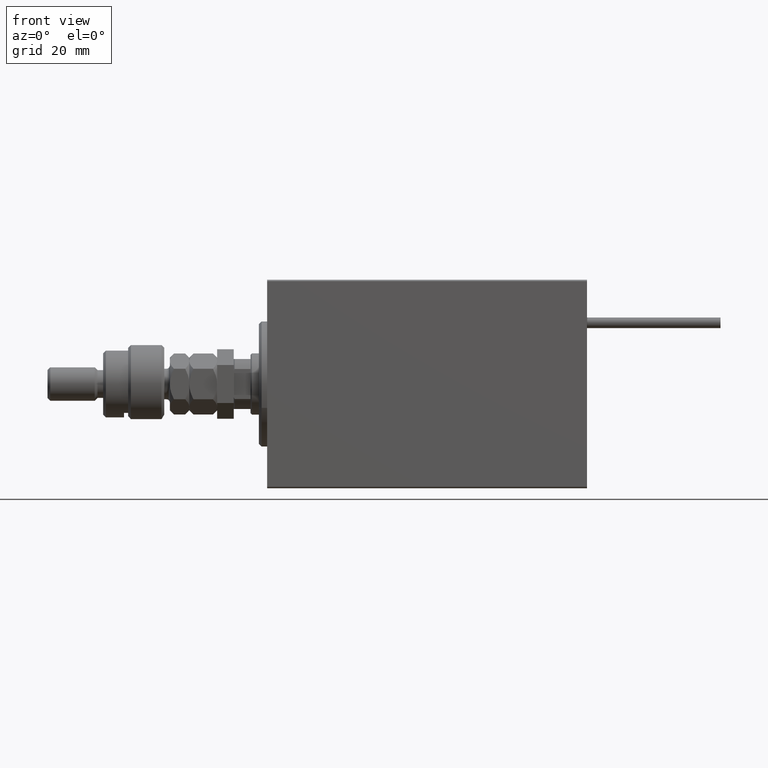
[diagram: clean part render]
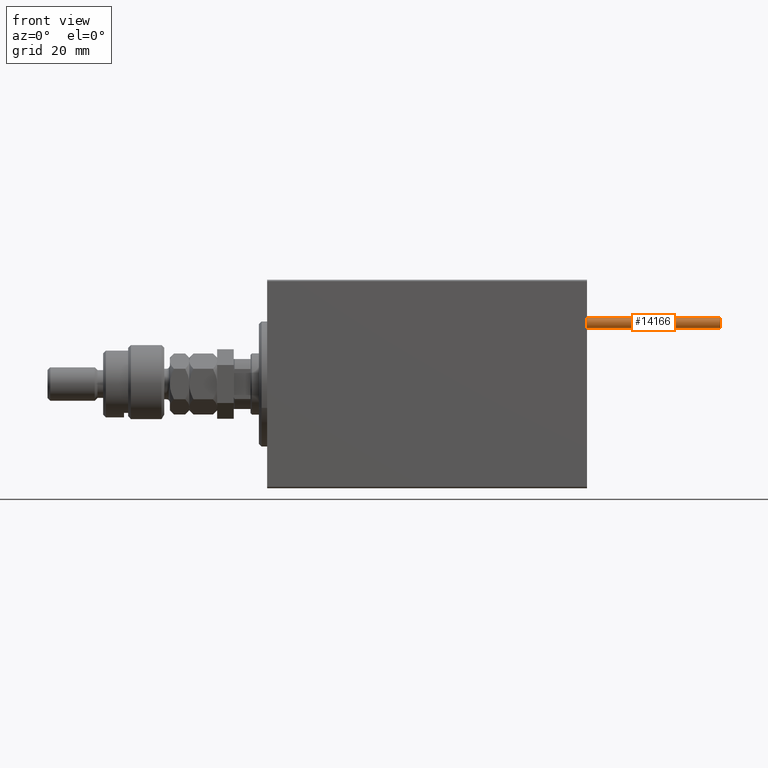
[diagram: same view with one face highlighted and labeled with its STEP entity id]
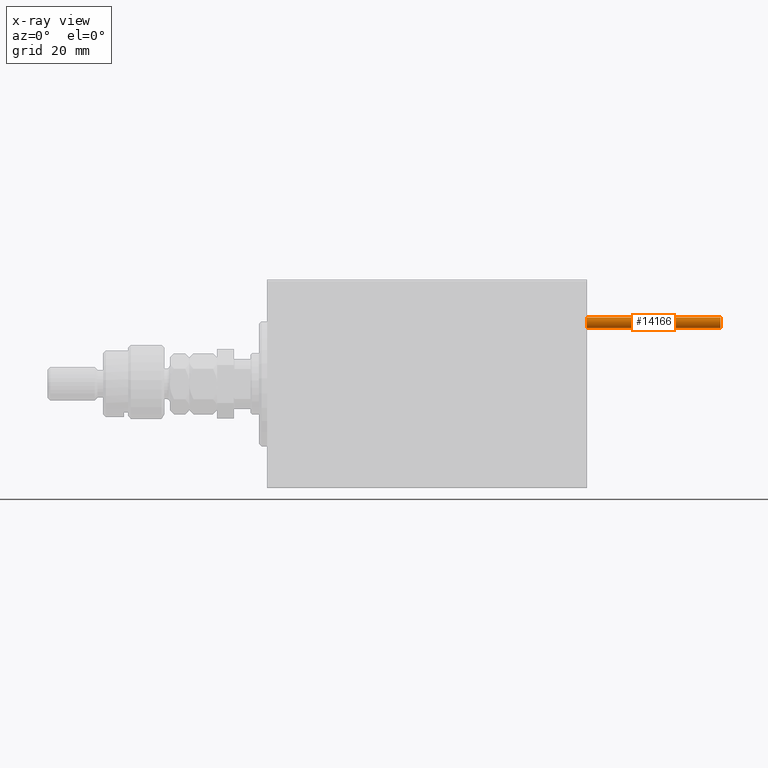
[diagram: x-ray of the same camera — body ghosted, the highlighted face saturated]
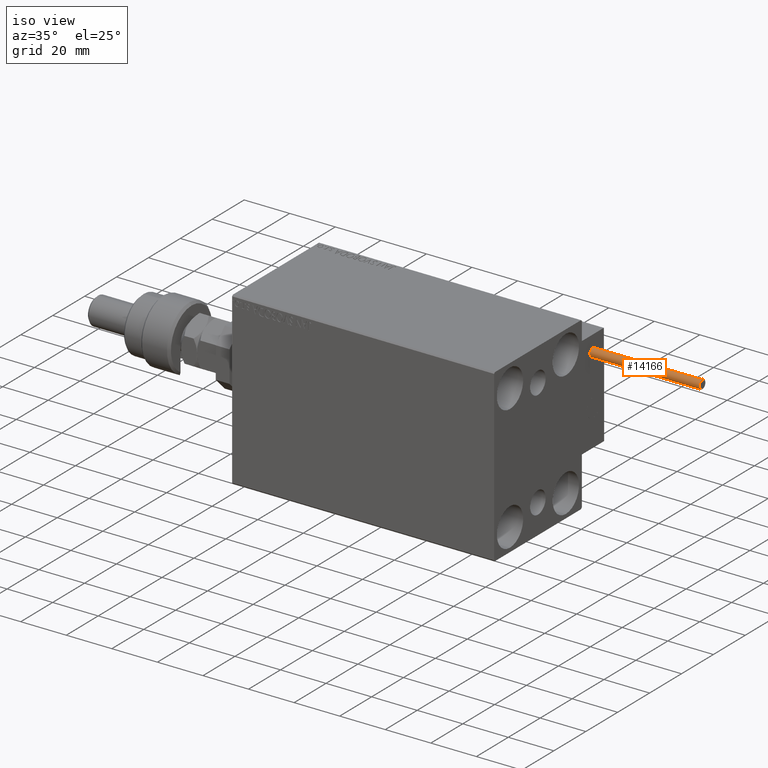
[diagram: same view with one face highlighted and labeled with its STEP entity id]
A machine part, front view. The second image highlights one B-rep face of the part: STEP entity #14166.
The next image is the same camera in x-ray: the body ghosted, the highlighted face saturated — about 0% of this face is hidden behind the body in this view.
A second angle (iso view) of the same face is appended — the face is thin or edge-on in the first view.
In plain terms, the highlighted cylindrical surface (edge-blend (fillet) strip) has radius 1.9 mm, axis along (-1, -0, 0).
Its self-contained STEP definition (entity closure, byte-faithful):
#5215 = EDGE_CURVE ( 'NONE', #15265, #6524, #37375, .T. ) ;
#5480 = VECTOR ( 'NONE', #38320, 1000.000000000000000 ) ;
#6524 = VERTEX_POINT ( 'NONE', #13892 ) ;
#9553 = ORIENTED_EDGE ( 'NONE', *, *, #34801, .F. ) ;
#12803 = CARTESIAN_POINT ( 'NONE',  ( 1.899999999999999467, 2.326828918379970872E-16, 48.00000000000000000 ) ) ;
#13892 = CARTESIAN_POINT ( 'NONE',  ( -1.899999999999999467, 0.000000000000000000, 0.000000000000000000 ) ) ;
#14166 = ADVANCED_FACE ( 'NONE', ( #22996 ), #31265, .T. ) ;
#15265 = VERTEX_POINT ( 'NONE', #24587 ) ;
#15541 = DIRECTION ( 'NONE',  ( 1.000000000000000000, 0.000000000000000000, 0.000000000000000000 ) ) ;
#15994 = CIRCLE ( 'NONE', #22803, 1.899999999999999467 ) ;
#18229 = CARTESIAN_POINT ( 'NONE',  ( 0.000000000000000000, 0.000000000000000000, 48.00000000000000000 ) ) ;
#20244 = ORIENTED_EDGE ( 'NONE', *, *, #47958, .F. ) ;
#22085 = LINE ( 'NONE', #30854, #5480 ) ;
#22803 = AXIS2_PLACEMENT_3D ( 'NONE', #51305, #26765, #30507 ) ;
#22996 = FACE_OUTER_BOUND ( 'NONE', #26496, .T. ) ;
#24102 = AXIS2_PLACEMENT_3D ( 'NONE', #18229, #34470, #35251 ) ;
#24587 = CARTESIAN_POINT ( 'NONE',  ( -1.899999999999999467, 0.000000000000000000, 48.00000000000000000 ) ) ;
#25401 = DIRECTION ( 'NONE',  ( -0.000000000000000000, -0.000000000000000000, -1.000000000000000000 ) ) ;
#26496 = EDGE_LOOP ( 'NONE', ( #20244, #9553, #31333, #40492 ) ) ;
#26765 = DIRECTION ( 'NONE',  ( 0.000000000000000000, 0.000000000000000000, 1.000000000000000000 ) ) ;
#29743 = EDGE_CURVE ( 'NONE', #6524, #37034, #15994, .T. ) ;
#30507 = DIRECTION ( 'NONE',  ( 1.000000000000000000, 0.000000000000000000, 0.000000000000000000 ) ) ;
#30854 = CARTESIAN_POINT ( 'NONE',  ( 1.899999999999999467, 2.326828918379970872E-16, 48.00000000000000000 ) ) ;
#31265 = CYLINDRICAL_SURFACE ( 'NONE', #24102, 1.899999999999999467 ) ;
#31333 = ORIENTED_EDGE ( 'NONE', *, *, #5215, .T. ) ;
#31801 = DIRECTION ( 'NONE',  ( 0.000000000000000000, 0.000000000000000000, 1.000000000000000000 ) ) ;
#32092 = CARTESIAN_POINT ( 'NONE',  ( 1.899999999999999467, 2.326828918379970872E-16, 0.000000000000000000 ) ) ;
#32395 = VECTOR ( 'NONE', #25401, 1000.000000000000000 ) ;
#33659 = CARTESIAN_POINT ( 'NONE',  ( -1.899999999999999467, 0.000000000000000000, 48.00000000000000000 ) ) ;
#34470 = DIRECTION ( 'NONE',  ( -0.000000000000000000, -0.000000000000000000, -1.000000000000000000 ) ) ;
#34801 = EDGE_CURVE ( 'NONE', #15265, #45714, #51978, .T. ) ;
#35251 = DIRECTION ( 'NONE',  ( -1.000000000000000000, 0.000000000000000000, 0.000000000000000000 ) ) ;
#37034 = VERTEX_POINT ( 'NONE', #32092 ) ;
#37375 = LINE ( 'NONE', #33659, #32395 ) ;
#37464 = AXIS2_PLACEMENT_3D ( 'NONE', #39791, #31801, #15541 ) ;
#38320 = DIRECTION ( 'NONE',  ( -0.000000000000000000, -0.000000000000000000, -1.000000000000000000 ) ) ;
#39791 = CARTESIAN_POINT ( 'NONE',  ( 0.000000000000000000, 0.000000000000000000, 48.00000000000000000 ) ) ;
#40492 = ORIENTED_EDGE ( 'NONE', *, *, #29743, .T. ) ;
#45714 = VERTEX_POINT ( 'NONE', #12803 ) ;
#47958 = EDGE_CURVE ( 'NONE', #45714, #37034, #22085, .T. ) ;
#51305 = CARTESIAN_POINT ( 'NONE',  ( 0.000000000000000000, 0.000000000000000000, 0.000000000000000000 ) ) ;
#51978 = CIRCLE ( 'NONE', #37464, 1.899999999999999467 ) ;